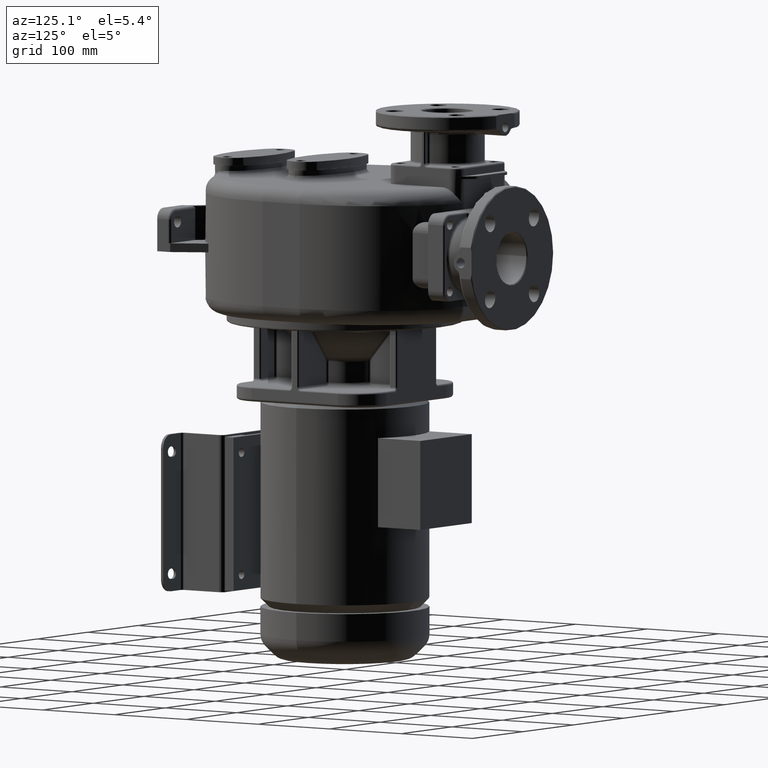
[diagram: clean part render]
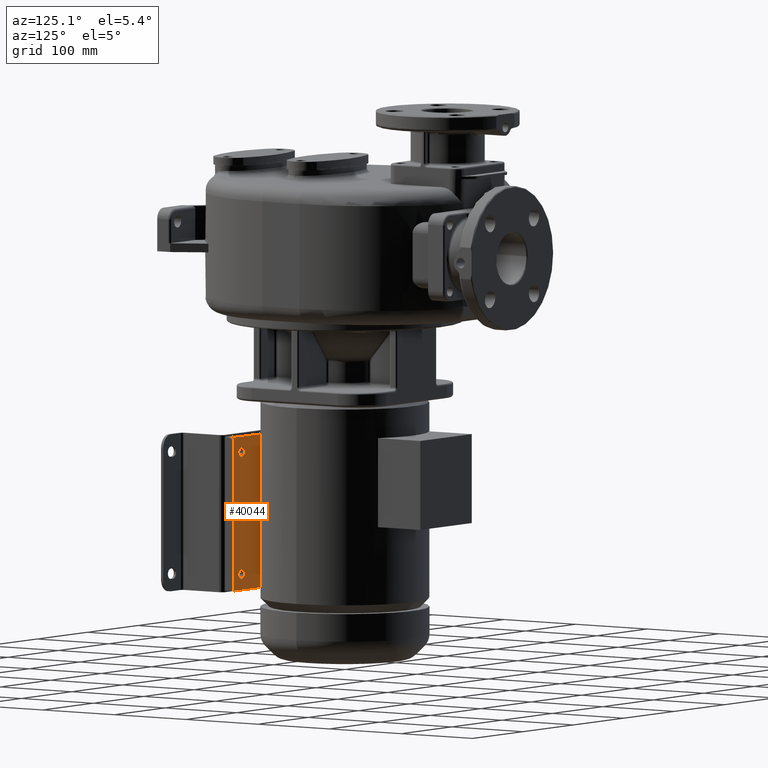
[diagram: same view with one face highlighted and labeled with its STEP entity id]
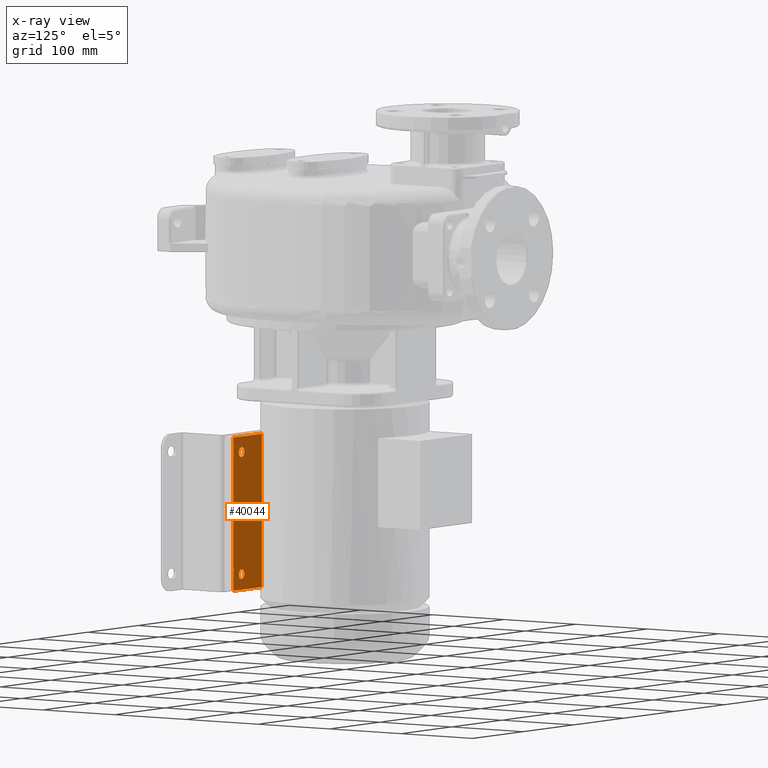
[diagram: x-ray of the same camera — body ghosted, the highlighted face saturated]
A machine part, auxiliary view. The second image highlights one B-rep face of the part: STEP entity #40044.
The next image is the same camera in x-ray: the body ghosted, the highlighted face saturated — about 0% of this face is hidden behind the body in this view.
In plain terms, the highlighted planar face has unit normal (0, 1, 0).
Its self-contained STEP definition (entity closure, byte-faithful):
#16939=DIRECTION('',(0.E0,0.E0,1.E0));
#16940=VECTOR('',#16939,1.76E2);
#16941=CARTESIAN_POINT('',(3.960113634733E1,-8.8E1,-2.21E2));
#16942=LINE('',#16941,#16940);
#17157=DIRECTION('',(1.E0,0.E0,0.E0));
#17158=VECTOR('',#17157,5.639886365267E1);
#17159=CARTESIAN_POINT('',(3.960113634733E1,-8.8E1,-4.5E1));
#17160=LINE('',#17159,#17158);
#17161=DIRECTION('',(-1.E0,0.E0,0.E0));
#17162=VECTOR('',#17161,5.639886365267E1);
#17163=CARTESIAN_POINT('',(9.6E1,-8.8E1,-2.21E2));
#17164=LINE('',#17163,#17162);
#17165=DIRECTION('',(0.E0,0.E0,-1.E0));
#17166=VECTOR('',#17165,1.76E2);
#17167=CARTESIAN_POINT('',(9.6E1,-8.8E1,-4.5E1));
#17168=LINE('',#17167,#17166);
#17169=CARTESIAN_POINT('',(8.E1,-8.8E1,-6.3E1));
#17170=DIRECTION('',(0.E0,1.E0,0.E0));
#17171=DIRECTION('',(0.E0,0.E0,-1.E0));
#17172=AXIS2_PLACEMENT_3D('',#17169,#17170,#17171);
#17174=CARTESIAN_POINT('',(8.E1,-8.8E1,-6.3E1));
#17175=DIRECTION('',(0.E0,1.E0,0.E0));
#17176=DIRECTION('',(0.E0,0.E0,1.E0));
#17177=AXIS2_PLACEMENT_3D('',#17174,#17175,#17176);
#17179=CARTESIAN_POINT('',(8.E1,-8.8E1,-2.03E2));
#17180=DIRECTION('',(0.E0,1.E0,0.E0));
#17181=DIRECTION('',(0.E0,0.E0,-1.E0));
#17182=AXIS2_PLACEMENT_3D('',#17179,#17180,#17181);
#17184=CARTESIAN_POINT('',(8.E1,-8.8E1,-2.03E2));
#17185=DIRECTION('',(0.E0,1.E0,0.E0));
#17186=DIRECTION('',(0.E0,0.E0,1.E0));
#17187=AXIS2_PLACEMENT_3D('',#17184,#17185,#17186);
#18037=CARTESIAN_POINT('',(9.6E1,-8.8E1,-4.5E1));
#18038=CARTESIAN_POINT('',(9.6E1,-8.8E1,-2.21E2));
#18039=VERTEX_POINT('',#18037);
#18040=VERTEX_POINT('',#18038);
#18043=CARTESIAN_POINT('',(3.960113634733E1,-8.8E1,-4.5E1));
#18044=VERTEX_POINT('',#18043);
#18047=CARTESIAN_POINT('',(3.960113634733E1,-8.8E1,-2.21E2));
#18048=VERTEX_POINT('',#18047);
#18075=CARTESIAN_POINT('',(8.E1,-8.8E1,-6.85E1));
#18076=CARTESIAN_POINT('',(8.E1,-8.8E1,-5.75E1));
#18077=VERTEX_POINT('',#18075);
#18078=VERTEX_POINT('',#18076);
#18079=CARTESIAN_POINT('',(8.E1,-8.8E1,-2.085E2));
#18080=CARTESIAN_POINT('',(8.E1,-8.8E1,-1.975E2));
#18081=VERTEX_POINT('',#18079);
#18082=VERTEX_POINT('',#18080);
#40020=CARTESIAN_POINT('',(0.E0,-8.8E1,-3.01E2));
#40021=DIRECTION('',(0.E0,1.E0,0.E0));
#40022=DIRECTION('',(0.E0,0.E0,1.E0));
#40023=AXIS2_PLACEMENT_3D('',#40020,#40021,#40022);
#40024=PLANE('',#40023);
#40025=ORIENTED_EDGE('',*,*,#40012,.F.);
#40026=ORIENTED_EDGE('',*,*,#39719,.F.);
#40027=ORIENTED_EDGE('',*,*,#39760,.F.);
#40029=ORIENTED_EDGE('',*,*,#40028,.F.);
#40030=EDGE_LOOP('',(#40025,#40026,#40027,#40029));
#40031=FACE_OUTER_BOUND('',#40030,.F.);
#40033=ORIENTED_EDGE('',*,*,#40032,.T.);
#40035=ORIENTED_EDGE('',*,*,#40034,.T.);
#40036=EDGE_LOOP('',(#40033,#40035));
#40037=FACE_BOUND('',#40036,.F.);
#40039=ORIENTED_EDGE('',*,*,#40038,.T.);
#40041=ORIENTED_EDGE('',*,*,#40040,.T.);
#40042=EDGE_LOOP('',(#40039,#40041));
#40043=FACE_BOUND('',#40042,.F.);
#40044=ADVANCED_FACE('',(#40031,#40037,#40043),#40024,.T.);
#17173=CIRCLE('',#17172,5.5E0);
#17178=CIRCLE('',#17177,5.5E0);
#17183=CIRCLE('',#17182,5.5E0);
#17188=CIRCLE('',#17187,5.5E0);
#39719=EDGE_CURVE('',#18048,#18044,#16942,.T.);
#39760=EDGE_CURVE('',#18040,#18048,#17164,.T.);
#40012=EDGE_CURVE('',#18044,#18039,#17160,.T.);
#40028=EDGE_CURVE('',#18039,#18040,#17168,.T.);
#40032=EDGE_CURVE('',#18077,#18078,#17173,.T.);
#40034=EDGE_CURVE('',#18078,#18077,#17178,.T.);
#40038=EDGE_CURVE('',#18081,#18082,#17183,.T.);
#40040=EDGE_CURVE('',#18082,#18081,#17188,.T.);